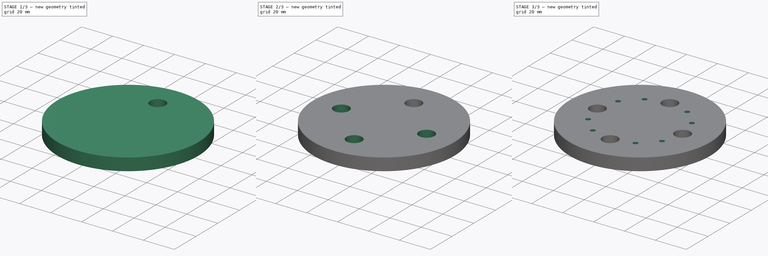
[diagram: build sequence overview — one tinted view per stage of 3, left to right]
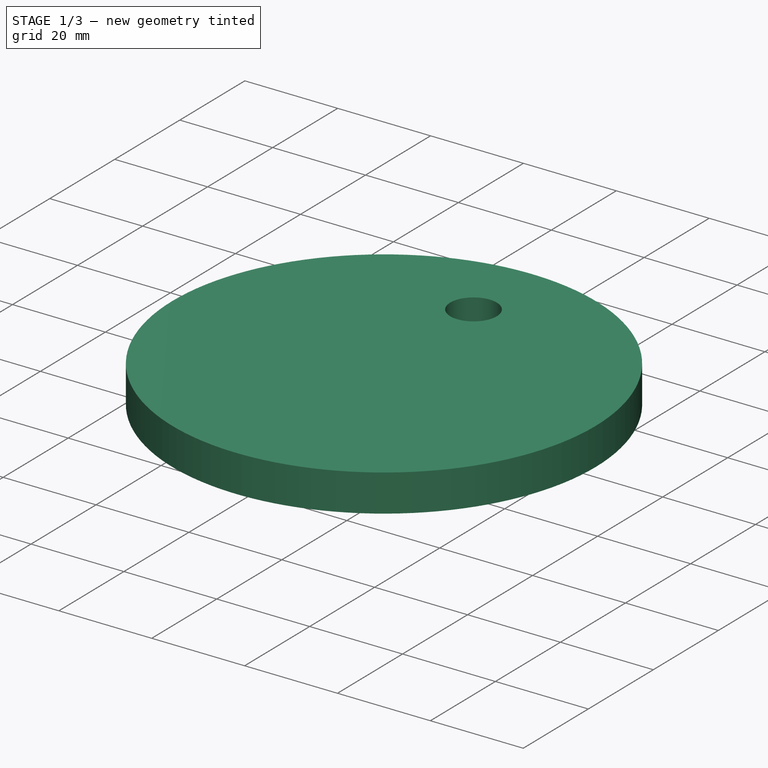
[diagram: stage 1 of 3 — iso view after this stage's code; geometry added in this stage tinted green]
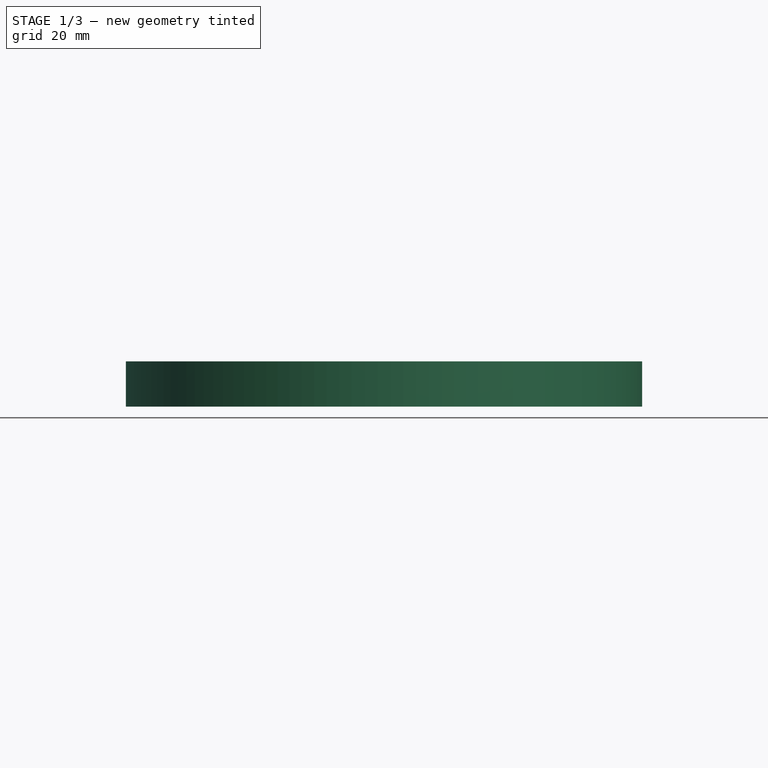
[diagram: stage 1 of 3 — front view after this stage's code; geometry added in this stage tinted green]
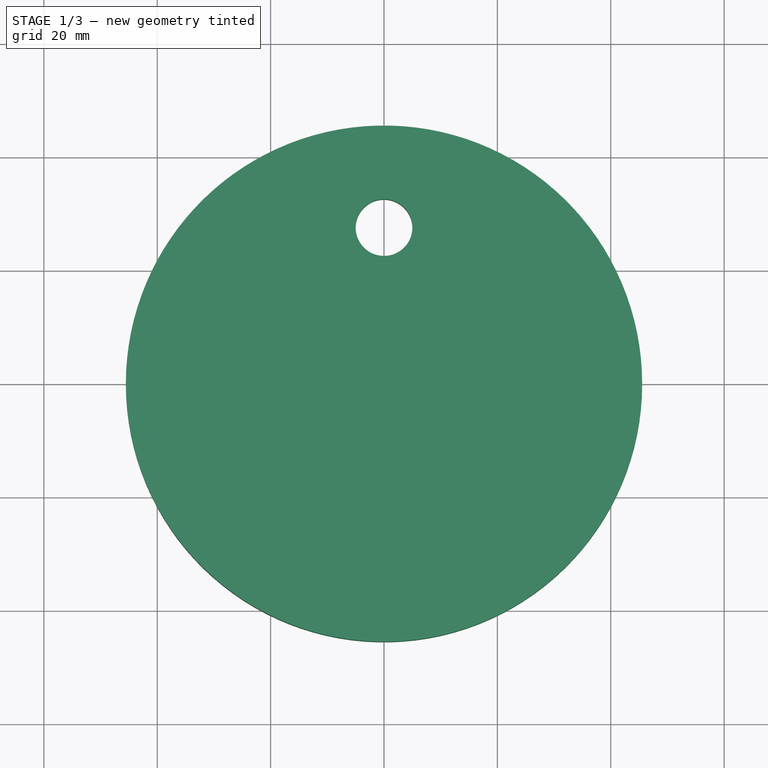
[diagram: stage 1 of 3 — top view after this stage's code; geometry added in this stage tinted green]
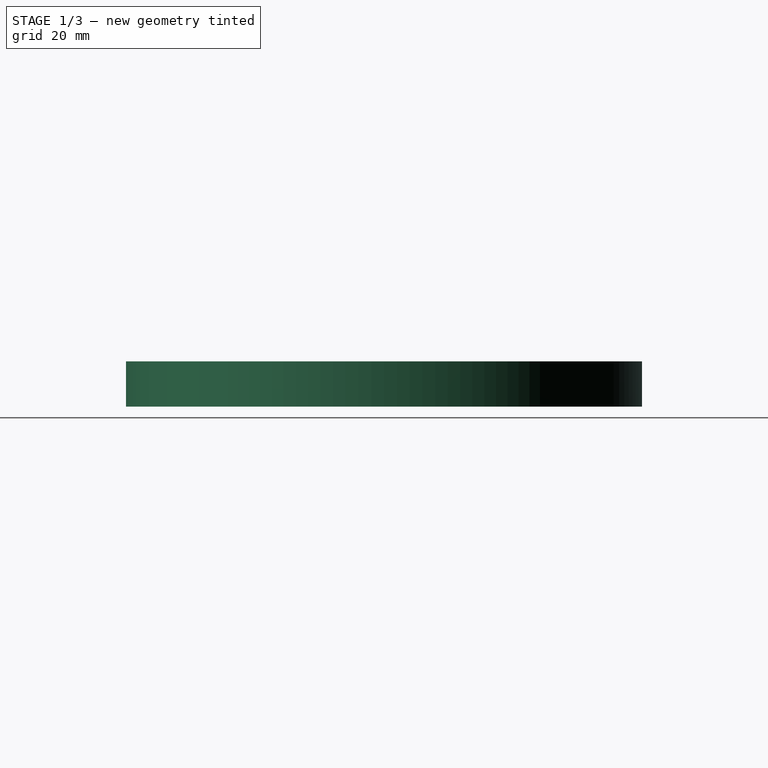
[diagram: stage 1 of 3 — right view after this stage's code; geometry added in this stage tinted green]
FCSTD DOCUMENT  (FreeCAD 0.21R33771 (Git))
Label: Stator_Mold_Island
License: All rights reserved
LicenseURL: http://en.wikipedia.org/wiki/All_rights_reserved
objects: Sketcher::SketchObject×3, PartDesign::Pocket×2, PartDesign::PolarPattern×2, PartDesign::Pad×1, Spreadsheet::Sheet×1, PartDesign::Body×1
note: 12 computed .brp shape members not serialized (recipe doc carries the construction recipe); baked Part::Feature solids carry a one-line shape summary decoded from their .brp
EXTERNAL_REF file=../../../Master_of_Puppets.FCStd obj=Alternator
EXTERNAL_REF file=../../../Master_of_Puppets.FCStd obj=Spreadsheet

FEATURE [Sketcher::SketchObject] Sketch
  FullyConstrained = true
  MapMode = 5
  Support = -> [XY_Plane001]
  expr: Constraints[1] = Spreadsheet.StatorInnerHoleRadius
  sketch-geometry (1):
    g0: Circle CenterX=0 CenterY=0 CenterZ=0 NormalX=0 NormalY=0 NormalZ=1 AngleXU=0 Radius=45.5337
  constraints (2):
    c: Coincident(g0,g-1)
    c: Radius(g0) = 45.5337
FEATURE [PartDesign::Pad] Pad
  AllowMultiFace = false
  Direction = (0,0,1)
  Length = 8
  Length2 = 100
  Profile = -> Sketch
  Type = 0
  expr: Length = Spreadsheet.StatorThickness
FEATURE [Sketcher::SketchObject] Sketch001  label="BoltSketch"
  FullyConstrained = true
  MapMode = 5
  Placement = pos=(0,0,8) rot=(0,0,1;0rad)
  Support = -> [Pad]
  expr: Constraints[1] = Spreadsheet.IslandInnerRadius
  expr: Constraints[4] = Spreadsheet.StatorMoldBoltRadius
  sketch-geometry (2):
    g0: Circle CenterX=0 CenterY=0 CenterZ=0 NormalX=0 NormalY=0 NormalZ=1 AngleXU=0 Radius=27.5337
    g1: Circle CenterX=0 CenterY=27.5337 CenterZ=0 NormalX=0 NormalY=0 NormalZ=1 AngleXU=0 Radius=5
  constraints (5):
    c: Coincident(g0,g-1)
    c: Radius(g0) = 27.5337
    c: PointOnObject(g1,g0)
    c: PointOnObject(g1,g-2)
    c: Radius(g1) = 5
FEATURE [PartDesign::Pocket] Pocket  label="BoltPocket"
  AllowMultiFace = false
  BaseFeature = -> Pad
  Direction = (0,0,-1)
  Length = 5
  Length2 = 100
  Profile = -> Sketch001
  Type = 1
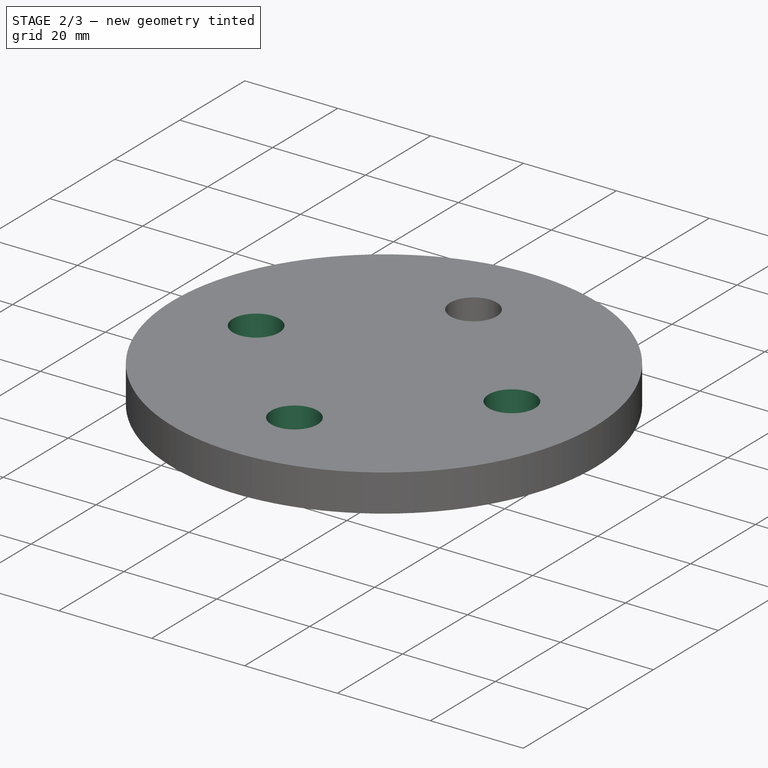
[diagram: stage 2 of 3 — iso view after this stage's code; geometry added in this stage tinted green]
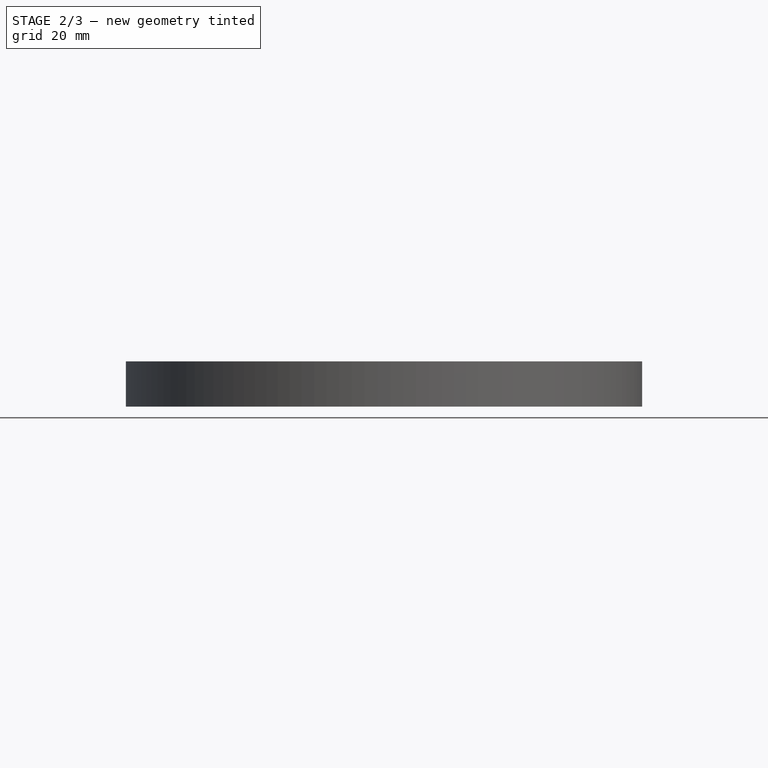
[diagram: stage 2 of 3 — front view after this stage's code; geometry added in this stage tinted green]
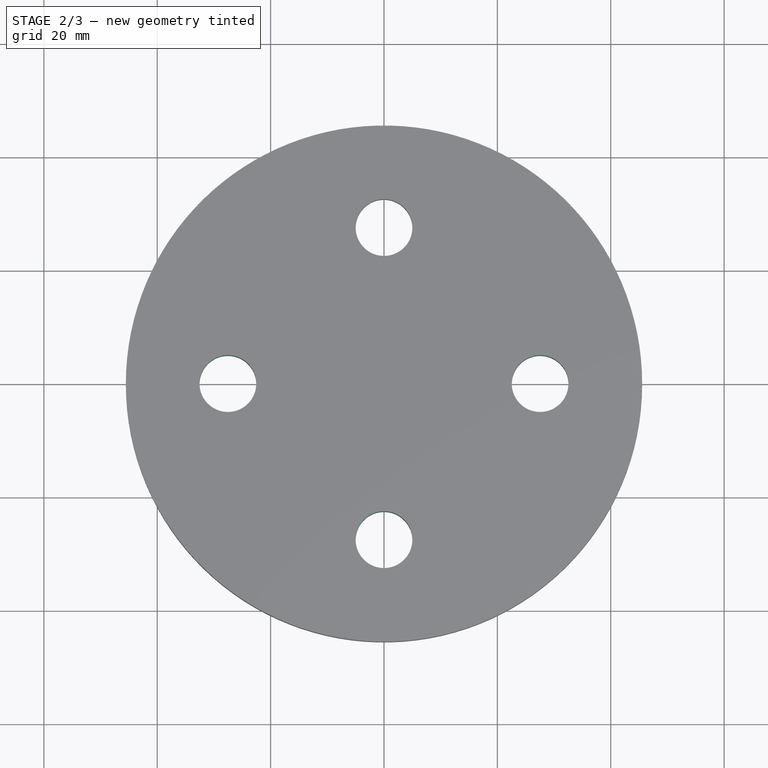
[diagram: stage 2 of 3 — top view after this stage's code; geometry added in this stage tinted green]
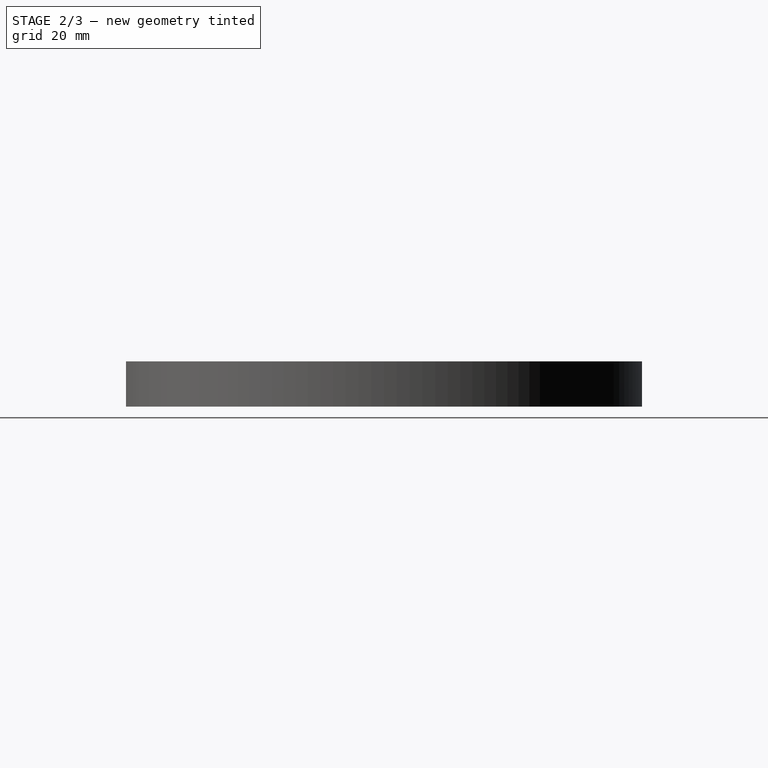
[diagram: stage 2 of 3 — right view after this stage's code; geometry added in this stage tinted green]
FEATURE [PartDesign::PolarPattern] PolarPattern  label="BoltPolarPattern"
  Angle = 360
  Axis = -> Sketch001 [N_Axis]
  BaseFeature = -> Pocket
  Occurrences = 4
  Originals = -> [Pocket]
  expr: Occurrences = Spreadsheet.StatorMoldIslandNumberOfBolts
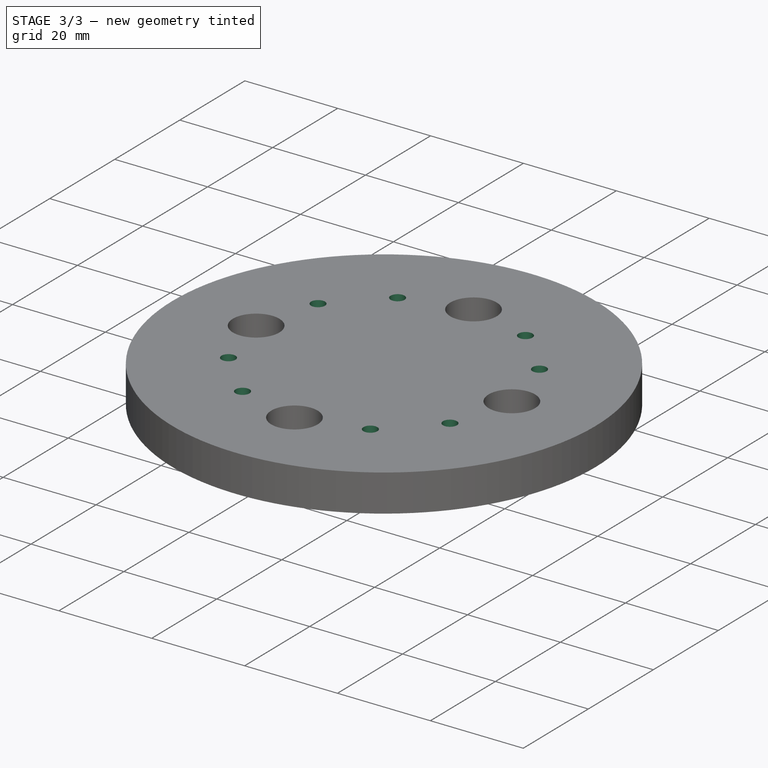
[diagram: stage 3 of 3 — iso view after this stage's code; geometry added in this stage tinted green]
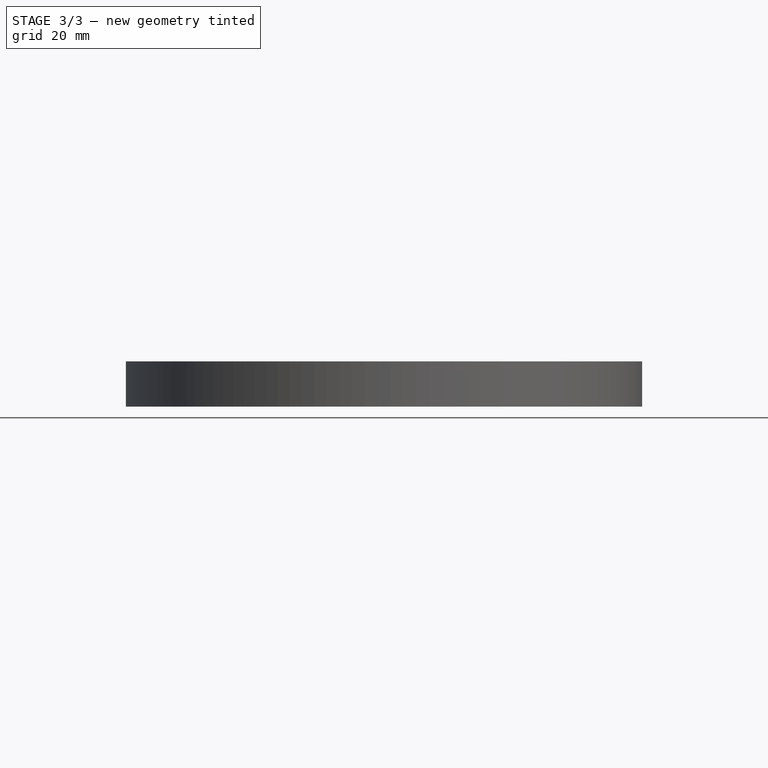
[diagram: stage 3 of 3 — front view after this stage's code; geometry added in this stage tinted green]
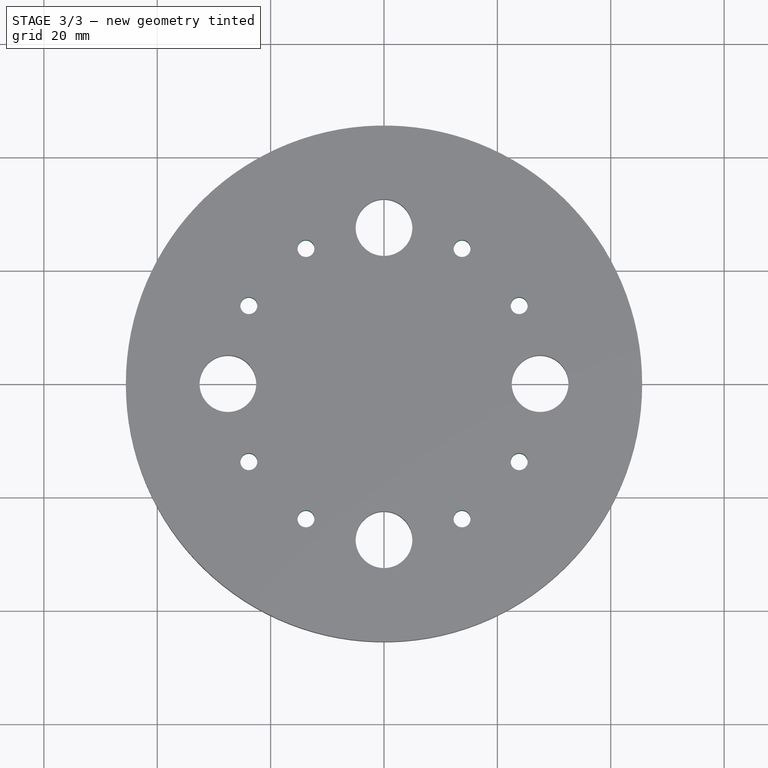
[diagram: stage 3 of 3 — top view after this stage's code; geometry added in this stage tinted green]
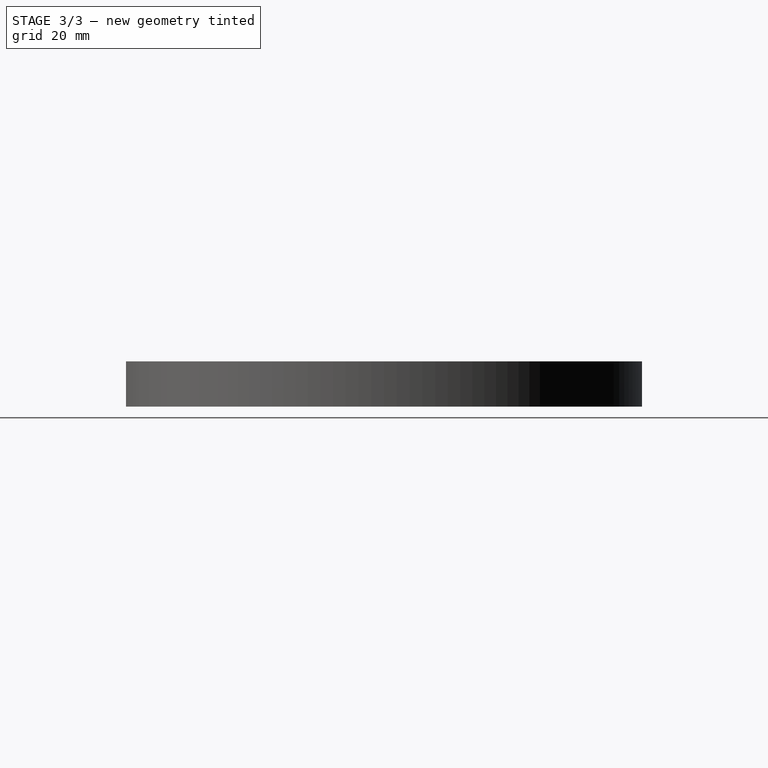
[diagram: stage 3 of 3 — right view after this stage's code; geometry added in this stage tinted green]
FEATURE [Spreadsheet::Sheet] Spreadsheet
  cells = A1='Inputs; A2='Spreadsheet; A3='StatorThickness; B3(StatorThickness)==Master_of_Puppets#Spreadsheet.StatorThickness; A4='StatorMoldBoltDiameter; B4(StatorMoldBoltDiameter)==Master_of_Puppets#Alternator.StatorMoldBoltDiameter; A5='RotorDiskRadius; B5(RotorDiskRadius)==Master_of_Puppets#Spreadsheet.RotorDiskRadius; A6='Alternator; A7='StatorInnerHoleRadius; B7(StatorInnerHoleRadius)==Master_of_Puppets#Alternator.StatorInnerHoleRadius; A8='IslandInnerRadius; B8(IslandInnerRadius)==Master_of_Puppets#Alternator.IslandInnerRadius; A9='StatorMoldScrewHoleRadius; B9(StatorMoldScrewHoleRadius)==Master_of_Puppets#Alternator.StatorMoldScrewHoleRadius; A10='StatorMoldIslandScrewAngle; B10(StatorMoldIslandScrewAngle)==Master_of_Puppets#Alternator.StatorMoldIslandScrewAngle; A11='StatorMoldIslandNumberOfBolts; B11(StatorMoldIslandNumberOfBolts)==Master_of_Puppets#Alternator.StatorMoldIslandNumberOfBolts; A12='StatorMoldIslandNumberOfScrewSectors; B12(StatorMoldIslandNumberOfScrewSectors)==Master_of_Puppets#Alternator.StatorMoldIslandNumberOfScrewSectors; A13='Calculated; A14='StatorMoldBoltRadius; B14(StatorMoldBoltRadius)==StatorMoldBoltDiameter / 2
FEATURE [Sketcher::SketchObject] Sketch002  label="ScrewSketch"
  FullyConstrained = true
  MapMode = 5
  Placement = pos=(0,0,8) rot=(0,0,1;0rad)
  Support = -> [Pad]
  expr: Constraints[1] = Spreadsheet.IslandInnerRadius
  expr: Constraints[4] = Spreadsheet.StatorMoldIslandScrewAngle
  expr: Constraints[5] = Spreadsheet.StatorMoldScrewHoleRadius
  sketch-geometry (3):
    g0: Circle CenterX=0 CenterY=0 CenterZ=0 NormalX=0 NormalY=0 NormalZ=1 AngleXU=0 Radius=27.5337
    g1: Circle CenterX=-13.7668 CenterY=23.8449 CenterZ=0 NormalX=0 NormalY=0 NormalZ=1 AngleXU=0 Radius=1.5
    g2: LineSegment StartX=0 StartY=0 StartZ=0 EndX=-13.7668 EndY=23.8449 EndZ=0
  constraints (7):
    c: Coincident(g0,g-1)
    c: Radius(g0) = 27.5337
    c: PointOnObject(g1,g0)
    c: Coincident(g2,g1)
    c: Angle(g-2,g2) = 0.523599
    c: Radius(g1) = 1.5
    c: Coincident(g2,g-1)
FEATURE [PartDesign::Pocket] Pocket001  label="ScrewPocket"
  BaseFeature = -> PolarPattern
  Direction = (0,0,-1)
  Length = 5
  Length2 = 100
  Profile = -> Sketch002
  Type = 1
FEATURE [PartDesign::PolarPattern] PolarPattern001  label="ScrewPolarPattern"
  Angle = 360
  Axis = -> Sketch002 [N_Axis]
  BaseFeature = -> Pocket001
  Occurrences = 12
  Originals = -> [Pocket001]
  expr: Occurrences = Spreadsheet.StatorMoldIslandNumberOfScrewSectors
FEATURE [PartDesign::Body] PolarPatternBody  label="Stator_Mold_Island"
  Group = -> [Sketch,Pad,Sketch001,Pocket,PolarPattern,Sketch002,Pocket001,PolarPattern001]
  Openafpm_Flat = true
  Origin = -> Origin001
  Tip = -> PolarPattern001
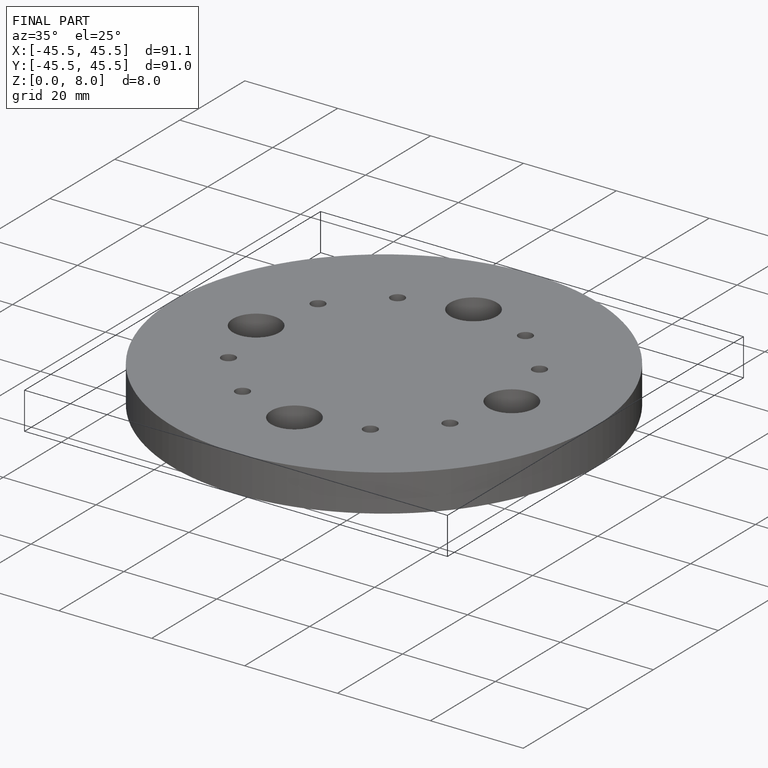
[diagram: finished part — iso view with bounding-box wireframe]
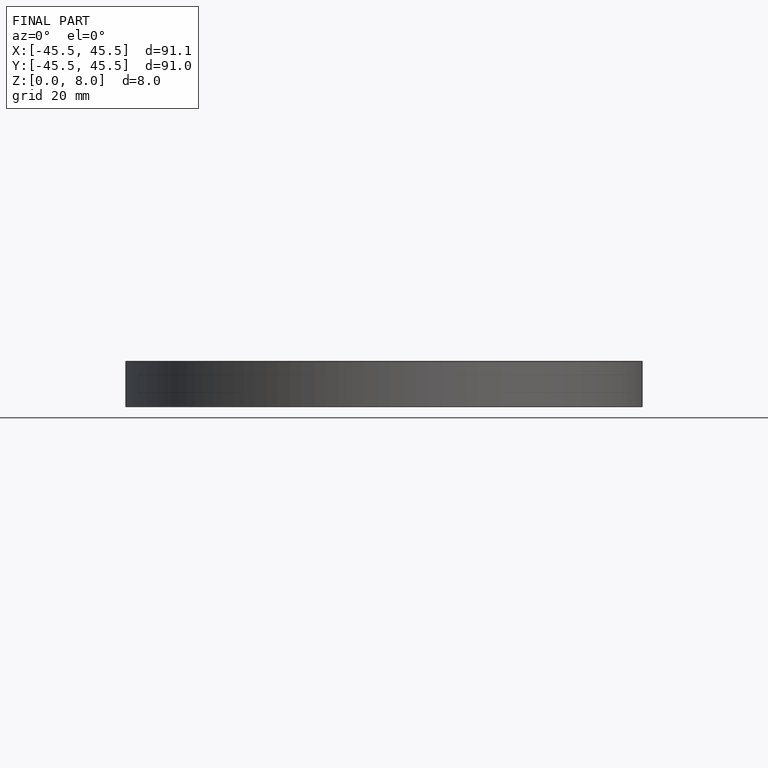
[diagram: finished part — front view with bounding-box wireframe]
